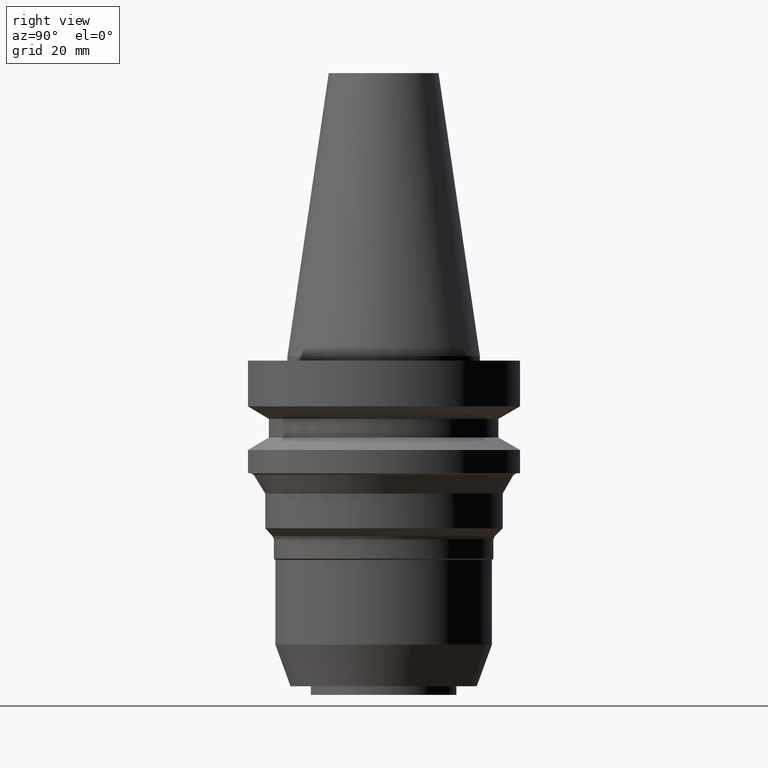
[diagram: clean part render]
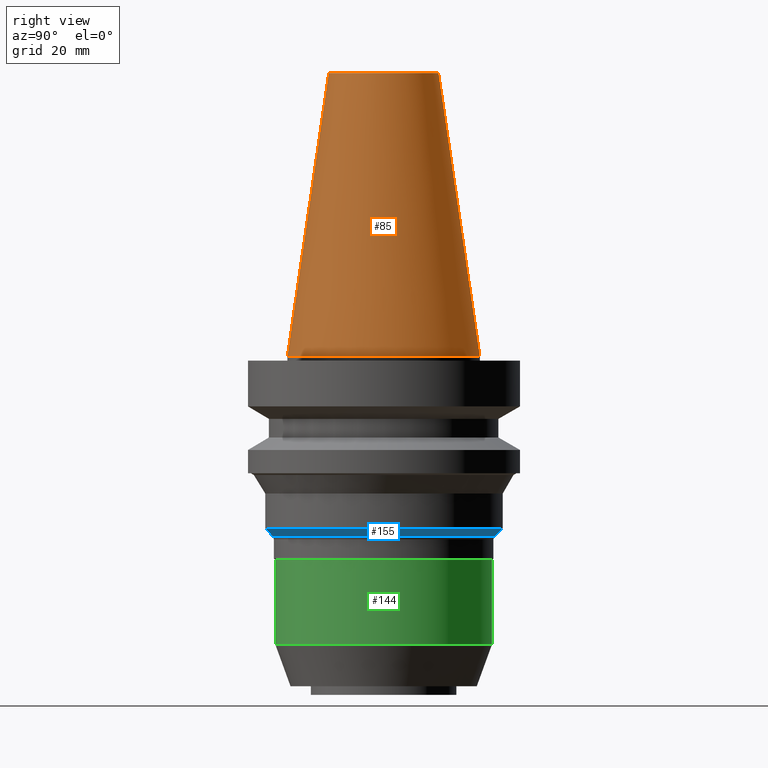
[diagram: same view with three faces highlighted in distinct colors, each labeled with its STEP entity id]
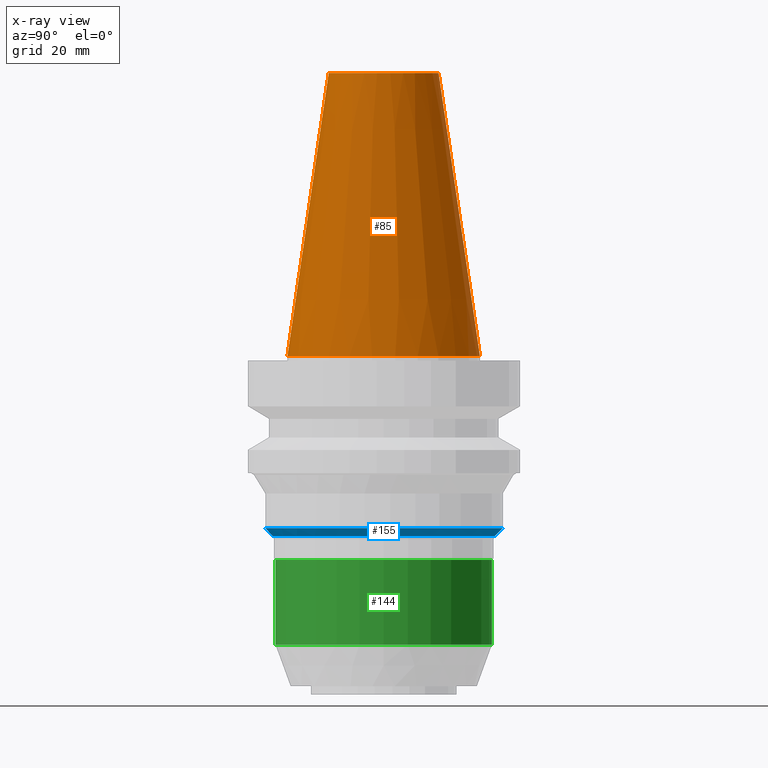
[diagram: x-ray of the same camera — body ghosted, the three highlighted faces saturated]
A machine part, right view with three faces highlighted in distinct colors.
The next image is the same camera in x-ray (body ghosted, the three faces saturated) — at least one of them is partly hidden behind the body in this view.
Their STEP definitions:

[orange] entity #85 — the highlighted conical surface has half-angle 8.297 deg.
#85=ADVANCED_FACE('Unnamed[1]',(#221,#222),#223,.T.);
#104=EDGE_CURVE('Unnamed[1]',#251,#251,#252,.T.);
#152=EDGE_CURVE('Unnamed[1]',#325,#325,#326,.T.);
#221=FACE_BOUND('',#409,.T.);
#222=FACE_BOUND('',#410,.T.);
#223=CONICAL_SURFACE('',#411,17.4562500000001,0.144812498238936);
#251=VERTEX_POINT('',#446);
#252=CIRCLE('',#447,22.225);
#325=VERTEX_POINT('',#539);
#326=CIRCLE('',#540,12.6875000000001);
#409=EDGE_LOOP('',(#620));
#410=EDGE_LOOP('',(#621));
#411=AXIS2_PLACEMENT_3D('',#622,#623,#624);
#446=CARTESIAN_POINT('',(1.71319921032766E-029,22.2250000000001,-2.8153873565375E-013));
#447=AXIS2_PLACEMENT_3D('',#656,#657,#658);
#539=CARTESIAN_POINT('',(-4.00459503321185E-015,12.6875000000002,65.4000000000001));
#540=AXIS2_PLACEMENT_3D('',#735,#736,#737);
#620=ORIENTED_EDGE('',*,*,#104,.F.);
#621=ORIENTED_EDGE('',*,*,#152,.T.);
#622=CARTESIAN_POINT('',(-2.00229751660592E-015,6.16353837461433E-014,32.6999999999999));
#623=DIRECTION('',(6.12323399573677E-017,-4.60918739095494E-016,-1.0));
#624=DIRECTION('',(2.33959801942475E-032,1.0,-4.60918739095494E-016));
#656=CARTESIAN_POINT('',(1.65331138531142E-029,4.65633409777206E-014,-2.70006239588838E-013));
#657=DIRECTION('',(6.12323399573677E-017,-4.60918739095494E-016,-1.0));
#658=DIRECTION('',(2.33959801942475E-032,1.0,-4.60918739095494E-016));
#735=CARTESIAN_POINT('',(-4.00459503321185E-015,7.6707426514566E-014,65.4000000000001));
#736=DIRECTION('',(6.12323399573677E-017,-4.60918739095494E-016,-1.0));
#737=DIRECTION('',(2.33959801942475E-032,1.0,-4.60918739095494E-016));

[blue] entity #155 — the highlighted conical surface has half-angle 45 deg.
#74=EDGE_CURVE('Unnamed[1]',#204,#204,#205,.T.);
#133=EDGE_CURVE('Unnamed[1]',#296,#296,#297,.T.);
#155=ADVANCED_FACE('Unnamed[1]',(#329,#330),#331,.T.);
#204=VERTEX_POINT('',#388);
#205=CIRCLE('',#389,25.6428932188133);
#296=VERTEX_POINT('',#504);
#297=CIRCLE('',#505,27.5000000000002);
#329=FACE_BOUND('',#544,.T.);
#330=FACE_BOUND('',#545,.T.);
#331=CONICAL_SURFACE('',#546,26.5714466094068,0.785398163397476);
#388=CARTESIAN_POINT('',(2.54461912698172E-015,25.6428932188133,-41.5567840254574));
#389=AXIS2_PLACEMENT_3D('',#601,#602,#603);
#504=CARTESIAN_POINT('',(2.43090413321895E-015,27.5000000000003,-39.6996772442706));
#505=AXIS2_PLACEMENT_3D('',#704,#705,#706);
#544=EDGE_LOOP('',(#739));
#545=EDGE_LOOP('',(#740));
#546=AXIS2_PLACEMENT_3D('',#741,#742,#743);
#601=CARTESIAN_POINT('',(2.54461912698172E-015,2.74090404838431E-014,-41.5567840254574));
#602=DIRECTION('',(6.12323399573677E-017,-4.60918739095494E-016,-1.0));
#603=DIRECTION('',(2.33959801942475E-032,1.0,-4.60918739095494E-016));
#704=CARTESIAN_POINT('',(2.43090413321895E-015,2.82650157997934E-014,-39.6996772442706));
#705=DIRECTION('',(6.12323399573677E-017,-4.60918739095494E-016,-1.0));
#706=DIRECTION('',(2.33959801942475E-032,1.0,-4.60918739095494E-016));
#739=ORIENTED_EDGE('',*,*,#74,.F.);
#740=ORIENTED_EDGE('',*,*,#133,.T.);
#741=CARTESIAN_POINT('',(2.48776163010033E-015,2.78370281418183E-014,-40.628230634864));
#742=DIRECTION('',(-6.12323399573677E-017,4.60918739095494E-016,1.0));
#743=DIRECTION('',(2.33959801942475E-032,1.0,-4.60918739095494E-016));

[green] entity #144 — the highlighted cylindrical surface (bore or boss wall) has radius 25 mm, axis along (0, -0, -1).
#125=EDGE_CURVE('Unnamed[1]',#284,#284,#285,.T.);
#144=ADVANCED_FACE('Unnamed[1]',(#311,#312),#313,.T.);
#168=EDGE_CURVE('Unnamed[1]',#351,#351,#352,.T.);
#284=VERTEX_POINT('',#488);
#285=CIRCLE('',#489,25.0);
#311=FACE_BOUND('',#522,.T.);
#312=FACE_BOUND('',#523,.T.);
#313=CYLINDRICAL_SURFACE('',#524,25.0);
#351=VERTEX_POINT('',#571);
#352=CIRCLE('',#572,25.0000000000001);
#488=CARTESIAN_POINT('',(2.88096183190448E-015,25.0,-47.0496772442524));
#489=AXIS2_PLACEMENT_3D('',#692,#693,#694);
#522=EDGE_LOOP('',(#718));
#523=EDGE_LOOP('',(#719));
#524=AXIS2_PLACEMENT_3D('',#720,#721,#722);
#571=CARTESIAN_POINT('',(4.07708365494536E-015,25.0000000000001,-66.5838290319134));
#572=AXIS2_PLACEMENT_3D('',#765,#766,#767);
#692=CARTESIAN_POINT('',(2.88096183190448E-015,2.487726306745E-014,-47.0496772442523));
#693=DIRECTION('',(6.12323399573676E-017,-4.60918739095494E-016,-1.0));
#694=DIRECTION('',(2.33959801942475E-032,1.0,-4.60918739095494E-016));
#718=ORIENTED_EDGE('',*,*,#168,.F.);
#719=ORIENTED_EDGE('',*,*,#125,.T.);
#720=CARTESIAN_POINT('',(3.47902274342492E-015,2.03754347618156E-014,-56.8167531380828));
#721=DIRECTION('',(6.12323399573677E-017,-4.60918739095494E-016,-1.0));
#722=DIRECTION('',(2.33959801942475E-032,1.0,-4.60918739095494E-016));
#765=CARTESIAN_POINT('',(4.07708365494536E-015,1.58736064561813E-014,-66.5838290319133));
#766=DIRECTION('',(6.12323399573677E-017,-4.60918739095494E-016,-1.0));
#767=DIRECTION('',(2.33959801942475E-032,1.0,-4.60918739095494E-016));